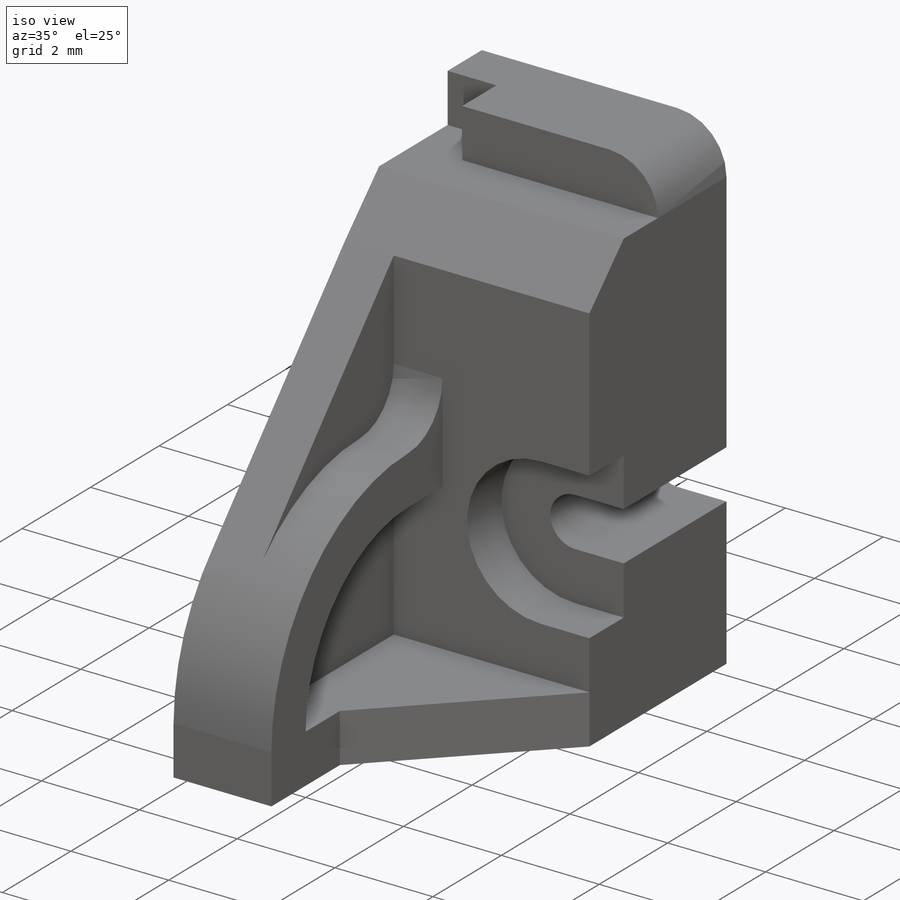
[diagram: iso view]
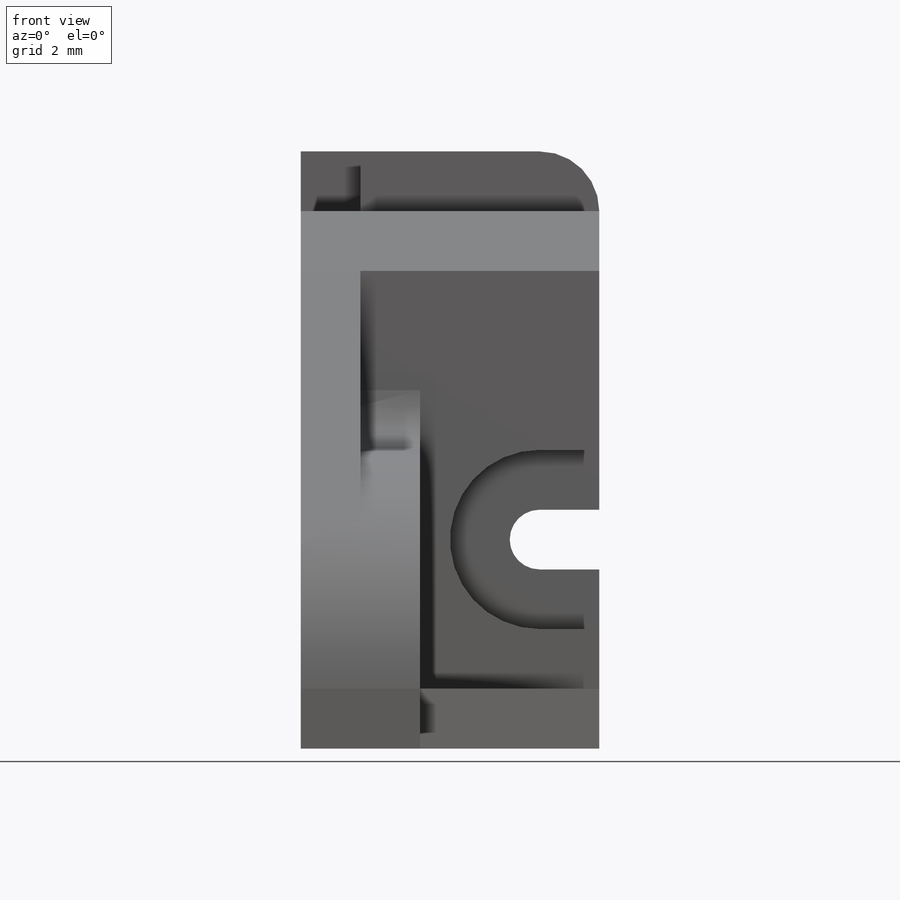
[diagram: front view]
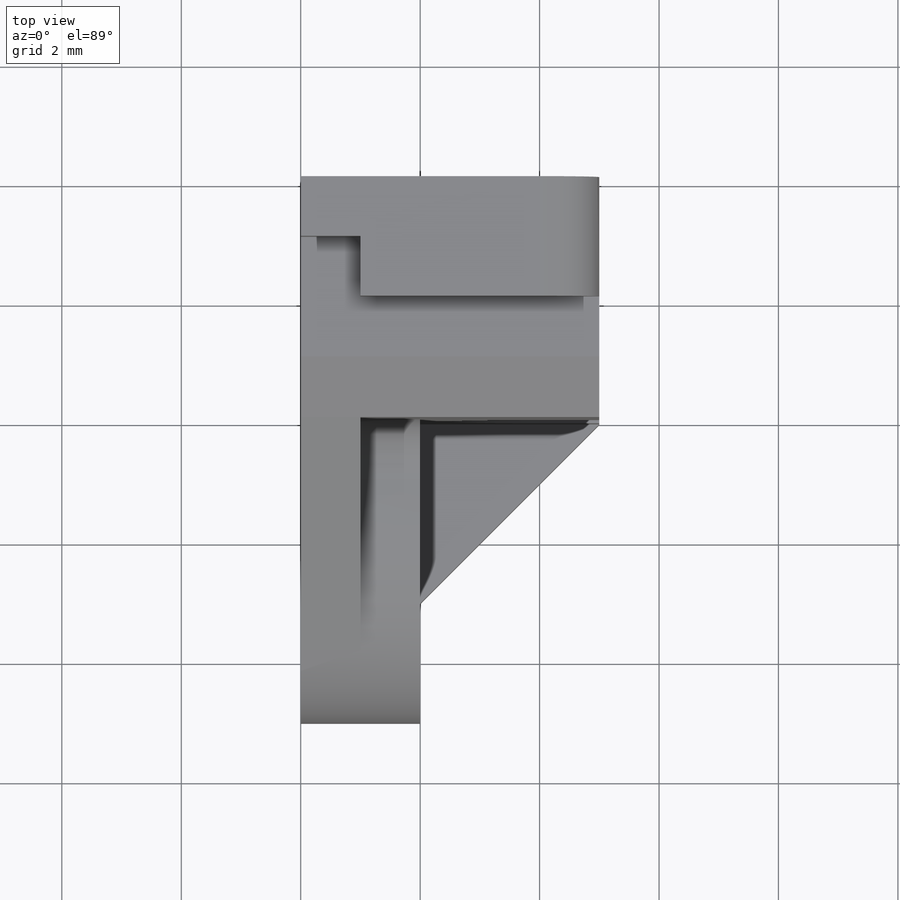
[diagram: top view]
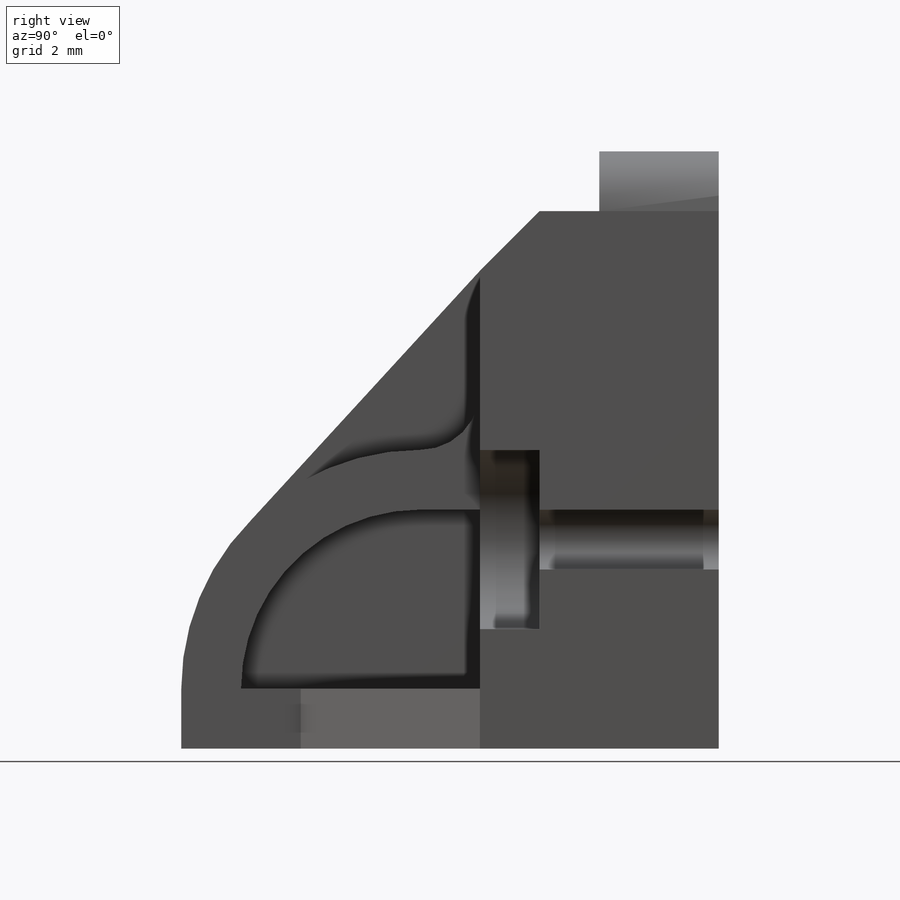
[diagram: right view]
SOLIDWORKS PART (.sldprt)
format: sldprt  version: not decoded by parser v0  size: 304,128 bytes
history: native  units: mm
features: sketch x8, extrude x4, cut_extrude x4, material x1 (+13 scaffold rows collapsed)
feature tree (30):
  scaffold x13  (default folders/planes/origin — collapsed)
  material  "Material <not specified>"
  sketch  "Sketch1"  dims[D9=1.0mm D1=5.0mm D2=3.0mm D3=1.0mm D4=1.0mm D5=5.0mm D6=9.0mm D7=1.0mm D8=4.0mm]
  extrude  "Boss-Extrude1"  Depth=4mm
  sketch  "Sketch2"  dims[D1=1.0mm D2=1.0mm D3=1.0mm D4=1.0mm D5=2.5mm]
  cut_extrude  "Cut-Extrude1"  Depth=1mm
  sketch  "Sketch3"  dims[D1=1.0mm D2=1.0mm]
  cut_extrude  "Cut-Extrude2"  Depth=3mm
  sketch  "Sketch4"  dims[D1=2.0mm D2=0.0mm]
  cut_extrude  "Cut-Extrude4"  [1 undecoded]
  sketch  "Sketch5"  dims[D1=1.0mm D2=1.0mm]
  cut_extrude  "Cut-Extrude5"  [1 undecoded]
  sketch  "Sketch6"  dims[D1=5.0mm D2=2.0mm D3=2.0mm]
  extrude  "Boss-Extrude2"  Depth=1mm
  sketch  "Sketch7"  dims[D1=2.0mm D2=1.0mm D3=2.0mm D4=1.0mm D5=1.0mm]
  extrude  "Boss-Extrude3"  Depth=2mm
  sketch  "Sketch9"
  extrude  "Boss-Extrude4"  Depth=1mm
decode coverage: 13 of 16 modeling features carry decoded parameters
note: 2 parameter values undecoded
note: suppression state not decoded; provenance and decode notes live in map.json
